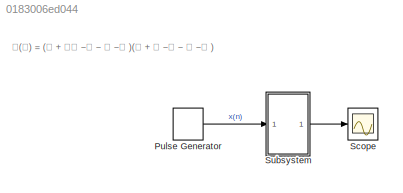
MODEL slx_0183006ed044
KIND model
CONFIG AbsTol = auto
CONFIG EnableMultiTasking = off
CONFIG FixedStep = auto
CONFIG MaxStep = auto
CONFIG MinStep = auto
CONFIG RelTol = 1e-3
CONFIG SampleTimeConstraint = Unconstrained
CONFIG SolverName = VariableStepAuto
CONFIG StartTime = 0.0
CONFIG StopTime = 100.0
BLOCK [DiscretePulseGenerator] Pulse Generator
  Period = 10
  Ports = [0, 1]
  PulseType = Time based
  PulseWidth = 5
BLOCK [Scope] Scope
  Floating = off
  NumInputPorts = 1
  Ports = [1]
  ScopeSpecificationString = Simulink.scopes.TimeScopeBlockCfg('CurrentConfiguration', extmgr.ConfigurationSet(extmgr.Configuration('Core','General UI',true),extmgr.Configuration('Core','Source UI',true),extmgr.Configuration('Sources','WiredSimulink',true),extmgr.Configuration('Visuals','Time Domain',true,'SerializedDisplays',{struct('MinYLimReal','-4.00000','MaxYLimReal','6.00000','YLabelReal','','MinYLimMag','0.00000','MaxY...<+1381ch>
BLOCK [ModelReference] Subsystem
  ModelNameDialog = problem7
  ModelReferenceVersion = 1.2
  Ports = [1, 1]
ANNOTATION (root): 𝐇(𝐳) = (𝟏 + 𝟐𝐳 −𝟏 − 𝐳 −𝟐 )(𝟏 + 𝐳 −𝟏 − 𝐳 −𝟐 )
LINE Pulse Generator:1 -> Subsystem:1
LINE Subsystem:1 -> Scope:1
